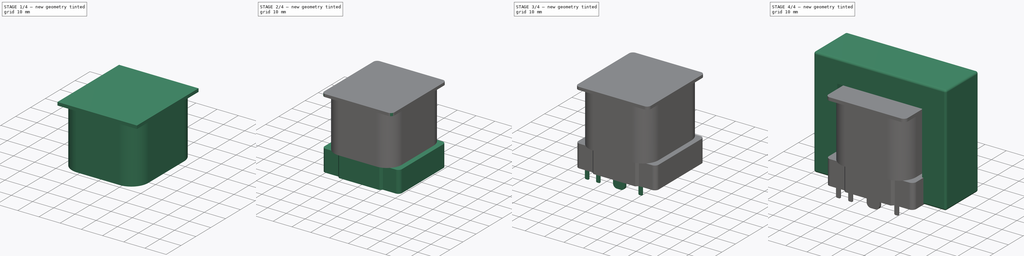
[diagram: build sequence overview — one tinted view per stage of 4, left to right]
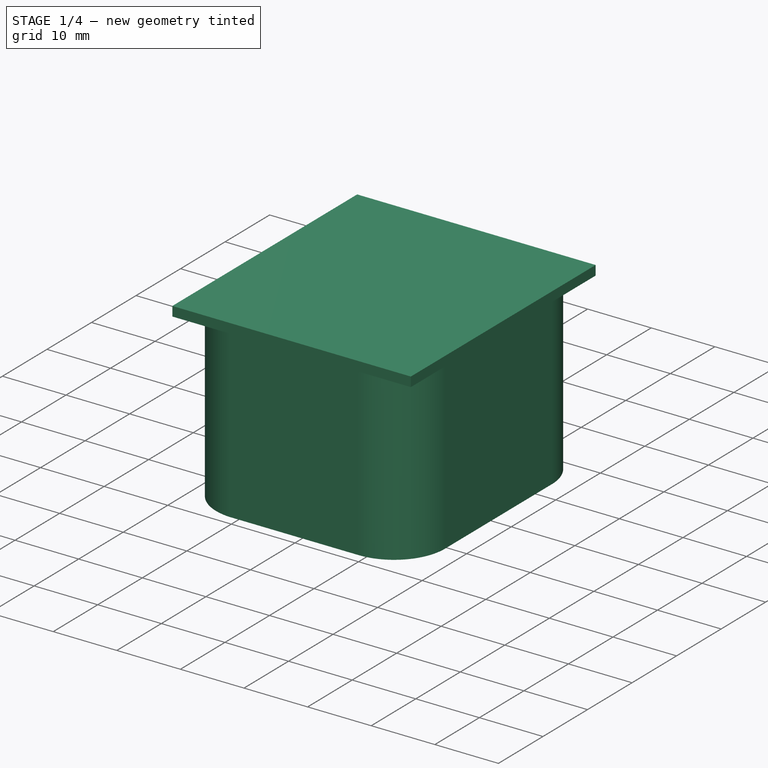
[diagram: stage 1 of 4 — iso view after this stage's code; geometry added in this stage tinted green]
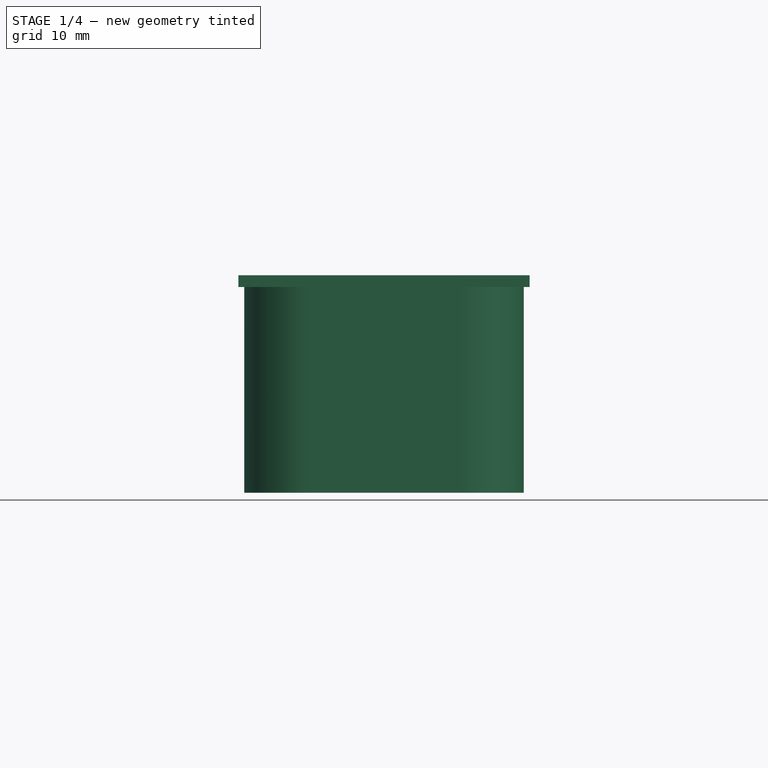
[diagram: stage 1 of 4 — front view after this stage's code; geometry added in this stage tinted green]
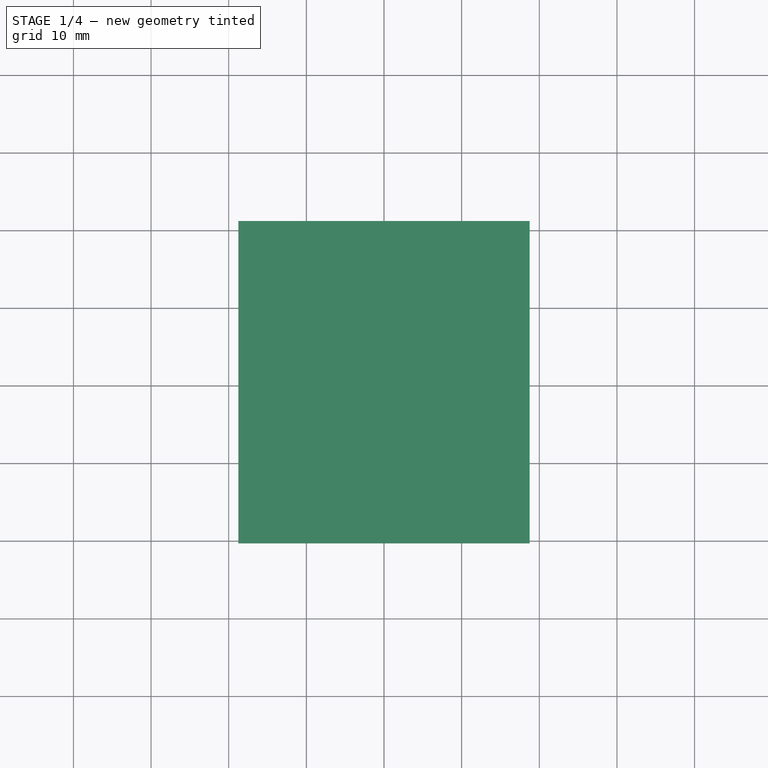
[diagram: stage 1 of 4 — top view after this stage's code; geometry added in this stage tinted green]
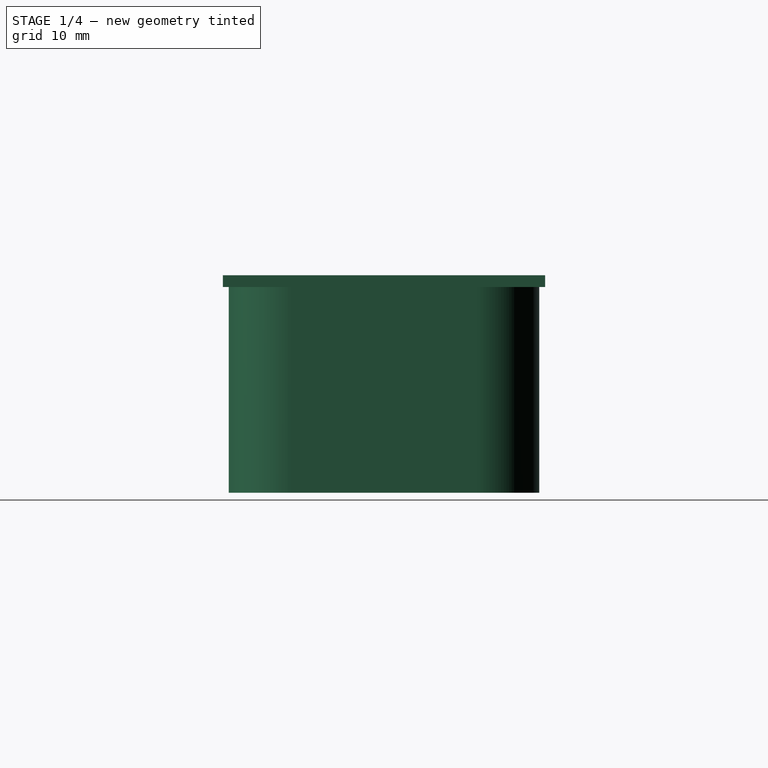
[diagram: stage 1 of 4 — right view after this stage's code; geometry added in this stage tinted green]
FCSTD DOCUMENT  (FreeCAD 0.19R)
Label: Output_transformer
License: All rights reserved
LicenseURL: http://en.wikipedia.org/wiki/All_rights_reserved
objects: PartDesign::Fillet×7, Sketcher::SketchObject×6, PartDesign::Pad×5, PartDesign::Body×2
note: 32 computed .brp shape members not serialized (recipe doc carries the construction recipe); baked Part::Feature solids carry a one-line shape summary decoded from their .brp

FEATURE [Sketcher::SketchObject] Sketch
  FullyConstrained = true
  MapMode = 5
  Support = -> [XY_Plane]
  sketch-geometry (12):
    g0: LineSegment StartX=-20.625 StartY=17.75 StartZ=0 EndX=-20.625 EndY=-17.75 EndZ=0
    g1: LineSegment StartX=-20.625 StartY=-17.75 StartZ=0 EndX=-11.875 EndY=-17.75 EndZ=0
    g2: LineSegment StartX=-11.875 StartY=-17.75 StartZ=0 EndX=-10.75 EndY=-18.875 EndZ=0
    g3: LineSegment StartX=-10.75 StartY=-18.875 StartZ=0 EndX=10.75 EndY=-18.875 EndZ=0
    g4: LineSegment StartX=10.75 StartY=-18.875 StartZ=0 EndX=11.875 EndY=-17.75 EndZ=0
    g5: LineSegment StartX=11.875 StartY=-17.75 StartZ=0 EndX=20.625 EndY=-17.75 EndZ=0
    g6: LineSegment StartX=20.625 StartY=-17.75 StartZ=0 EndX=20.625 EndY=17.75 EndZ=0
    g7: LineSegment StartX=20.625 StartY=17.75 StartZ=0 EndX=11.875 EndY=17.75 EndZ=0
    g8: LineSegment StartX=11.875 StartY=17.75 StartZ=0 EndX=10.75 EndY=18.875 EndZ=0
    g9: LineSegment StartX=10.75 StartY=18.875 StartZ=0 EndX=-10.75 EndY=18.875 EndZ=0
    g10: LineSegment StartX=-10.75 StartY=18.875 StartZ=0 EndX=-11.875 EndY=17.75 EndZ=0
    g11: LineSegment StartX=-11.875 StartY=17.75 StartZ=0 EndX=-20.625 EndY=17.75 EndZ=0
  constraints (30):
    c: Coincident(g0,g1)
    c: Coincident(g1,g2)
    c: Coincident(g2,g3)
    c: Coincident(g3,g4)
    c: Coincident(g4,g5)
    c: Coincident(g5,g6)
    c: Coincident(g6,g7)
    c: Coincident(g7,g8)
    c: Coincident(g8,g9)
    c: Coincident(g9,g10)
    c: Coincident(g10,g11)
    c: Coincident(g11,g0)
    c: Symmetric(g0,g0,g-1)
    c: Symmetric(g5,g6,g-1)
    c: Symmetric(g9,g8,g-2)
    c: Symmetric(g2,g3,g-2)
    c: Horizontal(g7)
    c: Horizontal(g5)
    c: Horizontal(g11)
    c: Horizontal(g1)
    c: DistanceX(g0,g5) = 41.25
    c: Symmetric(g0,g5,g-2)
    c: Equal(g1,g11)
    c: Equal(g11,g7)
    c: Equal(g7,g5)
    c: DistanceY(g0,g0) = 35.5
    c: Symmetric(g9,g2,g-1)
    c: DistanceY(g2,g9) = 37.75
    c: Angle(g4,g3) = 2.35619
    c: DistanceX(g3,g3) = 21.5
FEATURE [Sketcher::SketchObject] Sketch001
  FullyConstrained = true
  MapMode = 5
  Support = -> [XY_Plane]
  sketch-geometry (4):
    g0: LineSegment StartX=-18 StartY=20 StartZ=0 EndX=18 EndY=20 EndZ=0
    g1: LineSegment StartX=18 StartY=20 StartZ=0 EndX=18 EndY=-20 EndZ=0
    g2: LineSegment StartX=18 StartY=-20 StartZ=0 EndX=-18 EndY=-20 EndZ=0
    g3: LineSegment StartX=-18 StartY=-20 StartZ=0 EndX=-18 EndY=20 EndZ=0
  constraints (10):
    c: Coincident(g0,g1)
    c: Coincident(g1,g2)
    c: Coincident(g2,g3)
    c: Coincident(g3,g0)
    c: Horizontal(g0)
    c: Vertical(g3)
    c: Symmetric(g1,g0,g-1)
    c: Symmetric(g2,g1,g-2)
    c: DistanceX(g2,g2) = 36
    c: DistanceY(g3,g3) = 40
FEATURE [PartDesign::Pad] Pad001
  Direction = (1,1,1)
  Length = 26.5
  Length2 = 100
  Profile = -> Sketch001
  Type = 0
FEATURE [Sketcher::SketchObject] Sketch002
  FullyConstrained = true
  MapMode = 5
  Placement = pos=(0,0,26.5) rot=(0,0,1;0rad)
  Support = -> [Pad001]
  sketch-geometry (4):
    g0: LineSegment StartX=-18.75 StartY=20.75 StartZ=0 EndX=18.75 EndY=20.75 EndZ=0
    g1: LineSegment StartX=18.75 StartY=20.75 StartZ=0 EndX=18.75 EndY=-20.75 EndZ=0
    g2: LineSegment StartX=18.75 StartY=-20.75 StartZ=0 EndX=-18.75 EndY=-20.75 EndZ=0
    g3: LineSegment StartX=-18.75 StartY=-20.75 StartZ=0 EndX=-18.75 EndY=20.75 EndZ=0
  constraints (10):
    c: Coincident(g0,g1)
    c: Coincident(g1,g2)
    c: Coincident(g2,g3)
    c: Coincident(g3,g0)
    c: Horizontal(g0)
    c: Vertical(g3)
    c: Symmetric(g0,g1,g-1)
    c: Symmetric(g2,g1,g-2)
    c: DistanceX(g2,g2) = 37.5
    c: DistanceY(g3,g3) = 41.5
FEATURE [PartDesign::Pad] Pad002
  BaseFeature = -> Pad001
  Direction = (1,1,1)
  Length = 1.5
  Length2 = 100
  Profile = -> Sketch002
  Type = 0
FEATURE [PartDesign::Fillet] Fillet
  Base = -> Pad002 [Edge22,Edge20,Edge17,Edge18]
  BaseFeature = -> Pad002
  Radius = 8
  SupportTransform = false
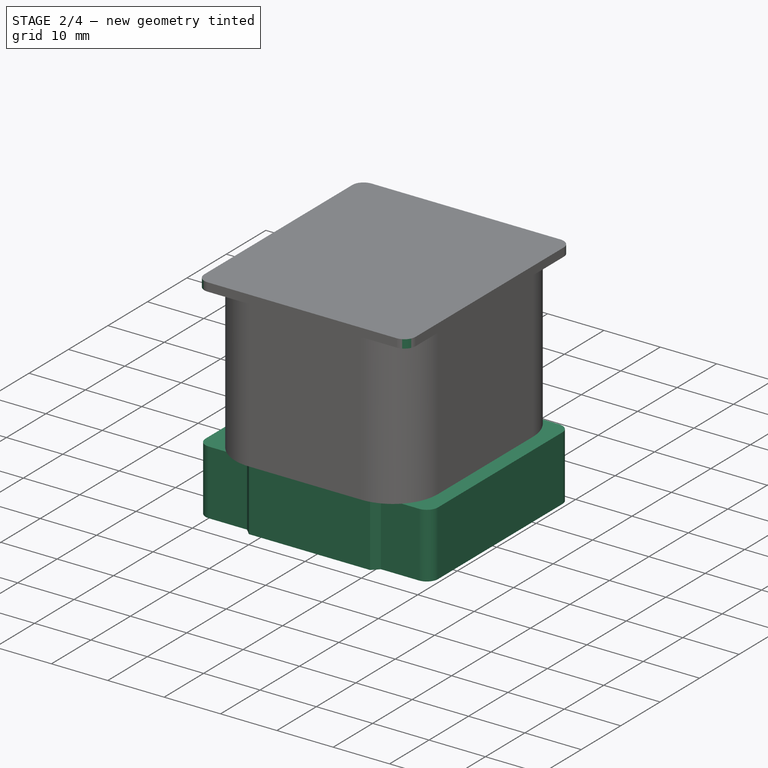
[diagram: stage 2 of 4 — iso view after this stage's code; geometry added in this stage tinted green]
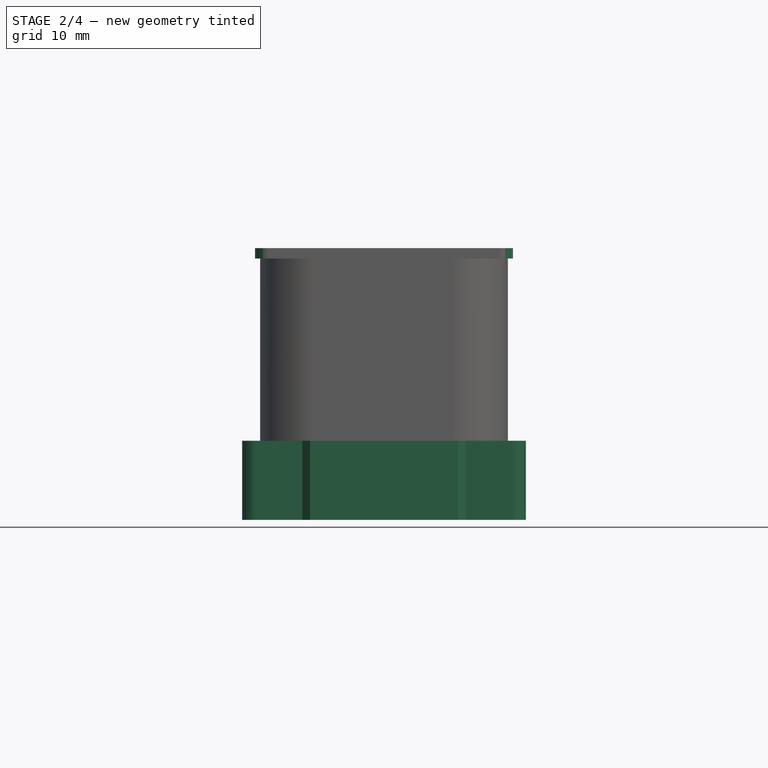
[diagram: stage 2 of 4 — front view after this stage's code; geometry added in this stage tinted green]
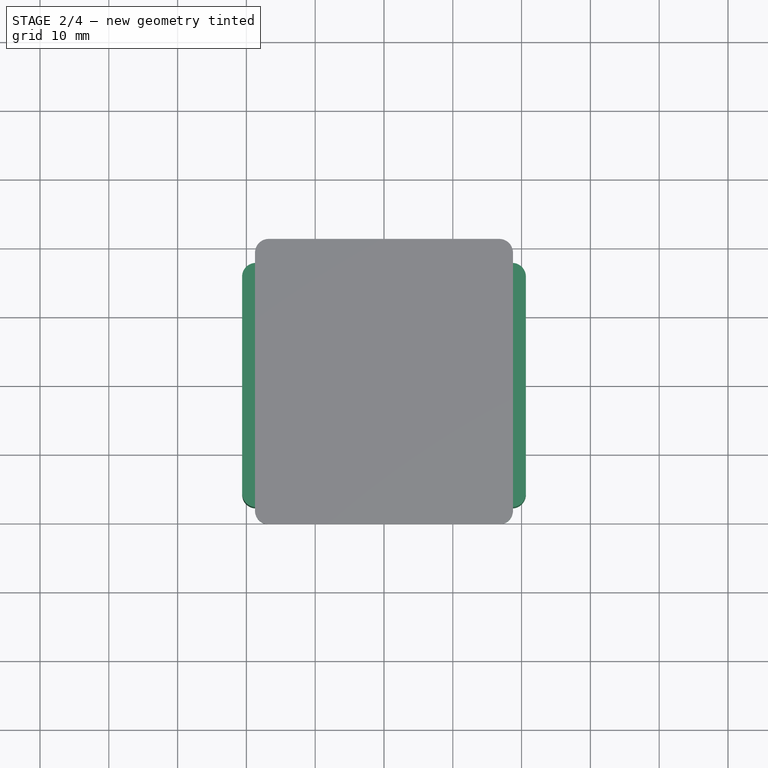
[diagram: stage 2 of 4 — top view after this stage's code; geometry added in this stage tinted green]
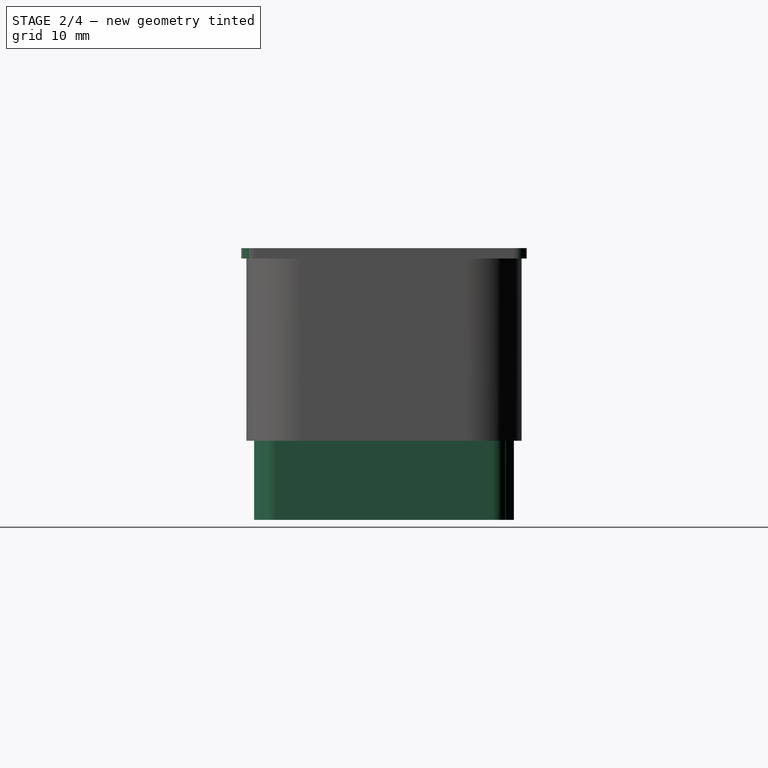
[diagram: stage 2 of 4 — right view after this stage's code; geometry added in this stage tinted green]
FEATURE [PartDesign::Pad] Pad
  BaseFeature = -> Fillet
  Direction = (1,1,1)
  Length = 11.5
  Length2 = 100
  Profile = -> Sketch
  Reversed = true
  Type = 0
FEATURE [PartDesign::Fillet] Fillet001
  Base = -> Pad [Edge33,Edge36,Edge38,Edge34]
  BaseFeature = -> Pad
  Radius = 2
  SupportTransform = false
FEATURE [PartDesign::Fillet] Fillet002
  Base = -> Fillet001 [Edge84,Edge78,Edge80,Edge70]
  BaseFeature = -> Fillet001
  Radius = 2
  SupportTransform = false
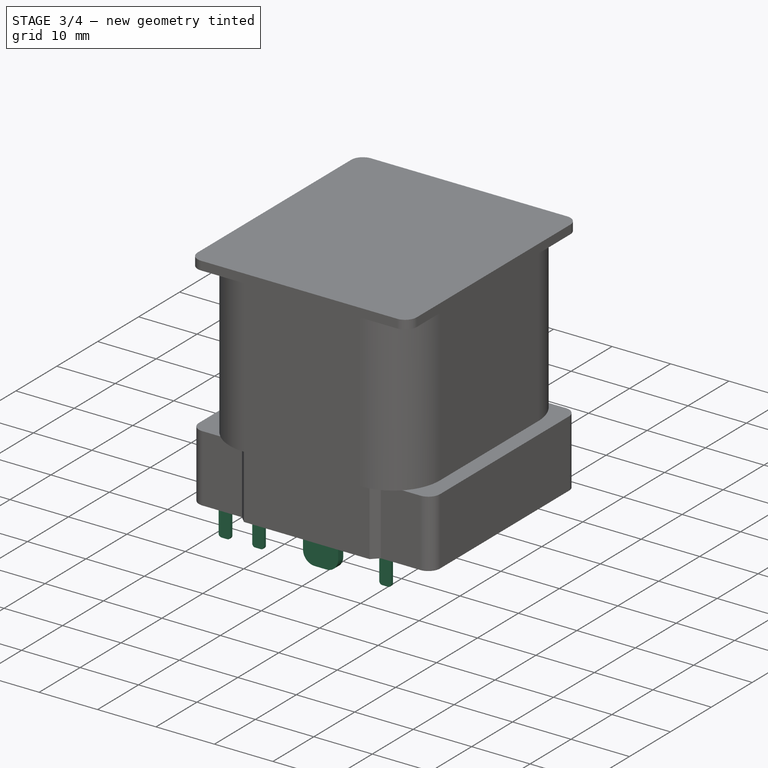
[diagram: stage 3 of 4 — iso view after this stage's code; geometry added in this stage tinted green]
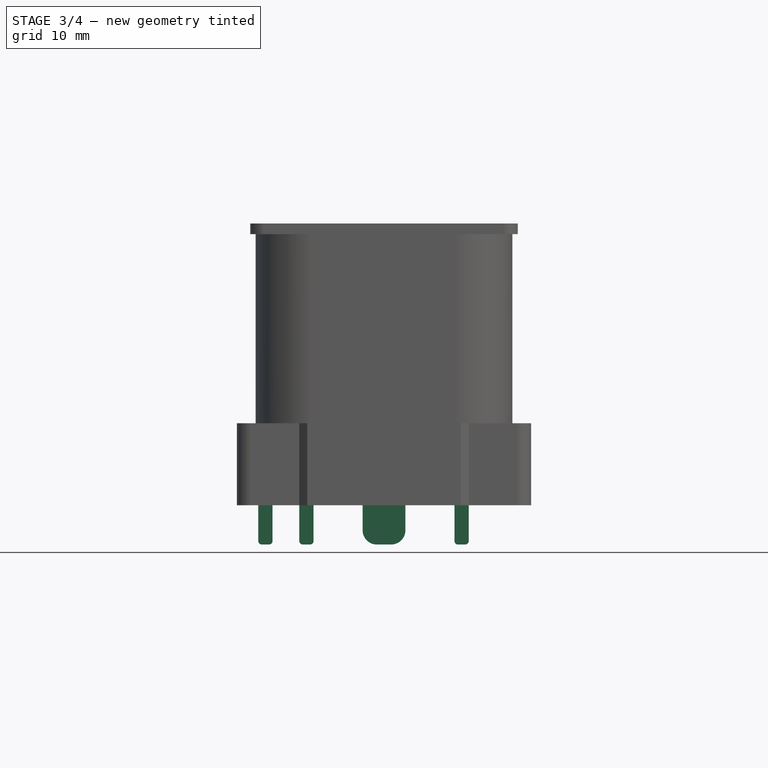
[diagram: stage 3 of 4 — front view after this stage's code; geometry added in this stage tinted green]
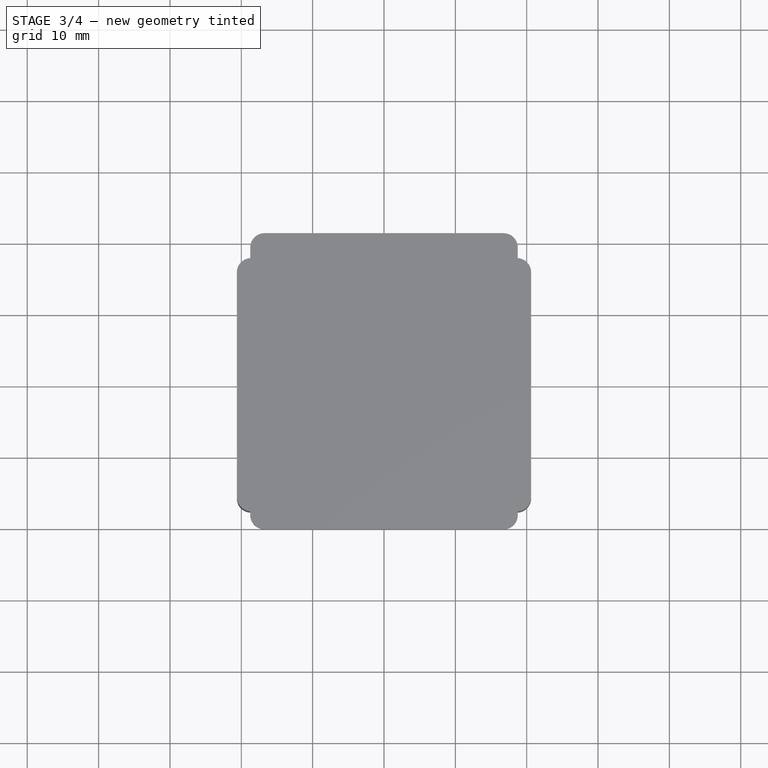
[diagram: stage 3 of 4 — top view after this stage's code; geometry added in this stage tinted green]
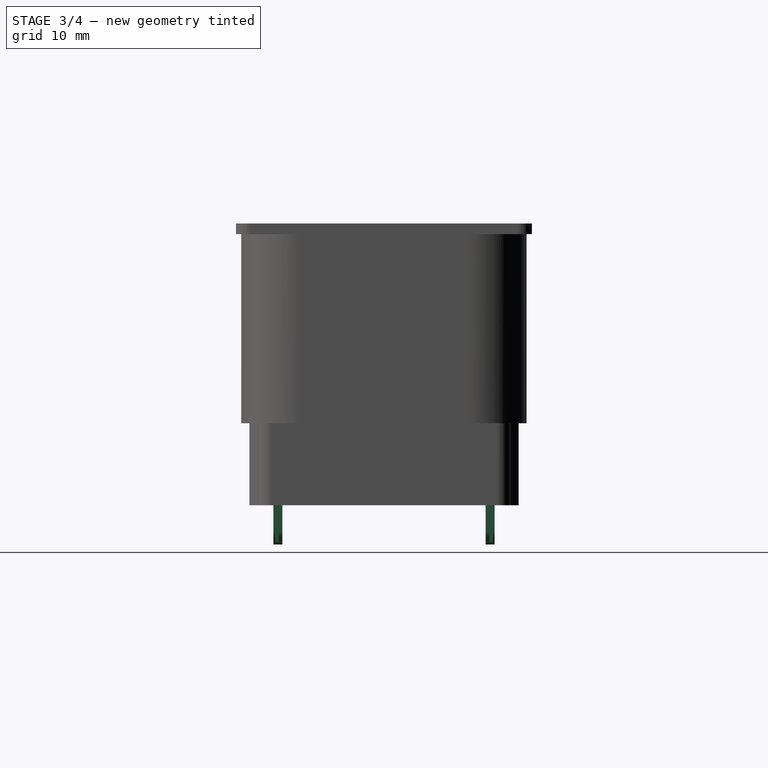
[diagram: stage 3 of 4 — right view after this stage's code; geometry added in this stage tinted green]
FEATURE [Sketcher::SketchObject] Sketch004
  FullyConstrained = true
  MapMode = 5
  Placement = pos=(0,-7.6e-15,-11.5) rot=(1,0,0;3.14159rad)
  Support = -> [Fillet004]
FEATURE [PartDesign::Body] Body001
  Group = -> [Sketch003,Pad003,Fillet003,Fillet004,Sketch004]
  Origin = -> Origin001
  Tip = -> Fillet004
FEATURE [Sketcher::SketchObject] Sketch005
  FullyConstrained = true
  MapMode = 5
  Placement = pos=(0,0,-11.5) rot=(1,0,0;3.14159rad)
  Support = -> [Fillet002]
  sketch-geometry (28):
    g0: LineSegment StartX=-15.625 StartY=14.75 StartZ=0 EndX=-17.625 EndY=14.75 EndZ=0
    g1: LineSegment StartX=-17.625 StartY=14.75 StartZ=0 EndX=-17.625 EndY=15.25 EndZ=0
    g2: LineSegment StartX=-17.625 StartY=15.25 StartZ=0 EndX=-15.625 EndY=15.25 EndZ=0
    g3: LineSegment StartX=-15.625 StartY=15.25 StartZ=0 EndX=-15.625 EndY=14.75 EndZ=0
    g4: LineSegment StartX=-11.875 StartY=14.75 StartZ=0 EndX=-9.875 EndY=14.75 EndZ=0
    g5: LineSegment StartX=-9.875 StartY=14.75 StartZ=0 EndX=-9.875 EndY=15.25 EndZ=0
    g6: LineSegment StartX=-9.875 StartY=15.25 StartZ=0 EndX=-11.875 EndY=15.25 EndZ=0
    g7: LineSegment StartX=-11.875 StartY=15.25 StartZ=0 EndX=-11.875 EndY=14.75 EndZ=0
    g8: LineSegment StartX=-3 StartY=15.5 StartZ=0 EndX=3 EndY=15.5 EndZ=0
    g9: LineSegment StartX=3 StartY=15.5 StartZ=0 EndX=3 EndY=14.25 EndZ=0
    g10: LineSegment StartX=3 StartY=14.25 StartZ=0 EndX=-3 EndY=14.25 EndZ=0
    g11: LineSegment StartX=-3 StartY=14.25 StartZ=0 EndX=-3 EndY=15.5 EndZ=0
    g12: LineSegment StartX=11.875 StartY=15.25 StartZ=0 EndX=9.875 EndY=15.25 EndZ=0
    g13: LineSegment StartX=9.875 StartY=15.25 StartZ=0 EndX=9.875 EndY=14.75 EndZ=0
    g14: LineSegment StartX=9.875 StartY=14.75 StartZ=0 EndX=11.875 EndY=14.75 EndZ=0
    g15: LineSegment StartX=11.875 StartY=14.75 StartZ=0 EndX=11.875 EndY=15.25 EndZ=0
    g16: LineSegment StartX=-17.625 StartY=-14.75 StartZ=0 EndX=-15.625 EndY=-14.75 EndZ=0
    g17: LineSegment StartX=-15.625 StartY=-14.75 StartZ=0 EndX=-15.625 EndY=-15.25 EndZ=0
    g18: LineSegment StartX=-15.625 StartY=-15.25 StartZ=0 EndX=-17.625 EndY=-15.25 EndZ=0
    g19: LineSegment StartX=-17.625 StartY=-15.25 StartZ=0 EndX=-17.625 EndY=-14.75 EndZ=0
    g20: LineSegment StartX=9.875 StartY=-14.75 StartZ=0 EndX=11.875 EndY=-14.75 EndZ=0
    g21: LineSegment StartX=11.875 StartY=-14.75 StartZ=0 EndX=11.875 EndY=-15.25 EndZ=0
    g22: LineSegment StartX=11.875 StartY=-15.25 StartZ=0 EndX=9.875 EndY=-15.25 EndZ=0
    g23: LineSegment StartX=9.875 StartY=-15.25 StartZ=0 EndX=9.875 EndY=-14.75 EndZ=0
    g24: LineSegment StartX=-3 StartY=-14.25 StartZ=0 EndX=3 EndY=-14.25 EndZ=0
    g25: LineSegment StartX=3 StartY=-14.25 StartZ=0 EndX=3 EndY=-15.5 EndZ=0
    g26: LineSegment StartX=3 StartY=-15.5 StartZ=0 EndX=-3 EndY=-15.5 EndZ=0
    g27: LineSegment StartX=-3 StartY=-15.5 StartZ=0 EndX=-3 EndY=-14.25 EndZ=0
  constraints (78):
    c: Coincident(g0,g1)
    c: Coincident(g1,g2)
    c: Coincident(g2,g3)
    c: Coincident(g3,g0)
    c: Horizontal(g0)
    c: Horizontal(g2)
    c: Vertical(g1)
    c: Vertical(g3)
    c: Coincident(g4,g5)
    c: Coincident(g5,g6)
    c: Coincident(g6,g7)
    c: Coincident(g7,g4)
    c: Horizontal(g4)
    c: Horizontal(g6)
    c: Vertical(g5)
    c: Vertical(g7)
    c: Coincident(g8,g9)
    c: Coincident(g9,g10)
    c: Coincident(g10,g11)
    c: Coincident(g11,g8)
    c: Horizontal(g8)
    c: Vertical(g9)
    c: Vertical(g11)
    c: Coincident(g12,g13)
    c: Coincident(g13,g14)
    c: Coincident(g14,g15)
    c: Coincident(g15,g12)
    c: Horizontal(g12)
    c: Horizontal(g14)
    c: Vertical(g13)
    c: Vertical(g15)
    c: Coincident(g16,g17)
    c: Coincident(g17,g18)
    c: Coincident(g18,g19)
    c: Coincident(g19,g16)
    c: Horizontal(g16)
    c: Horizontal(g18)
    c: Vertical(g17)
    c: Vertical(g19)
    c: Coincident(g20,g21)
    c: Coincident(g21,g22)
    c: Coincident(g22,g23)
    c: Coincident(g23,g20)
    c: Horizontal(g20)
    c: Horizontal(g22)
    c: Vertical(g21)
    c: Vertical(g23)
    c: Equal(g19,g3)
    c: Equal(g3,g7)
    c: Equal(g7,g23)
    c: Equal(g23,g15)
    c: Equal(g12,g4)
    c: Equal(g4,g0)
    c: Equal(g0,g16)
    c: Equal(g16,g20)
    c: Coincident(g24,g25)
    c: Coincident(g25,g26)
    c: Coincident(g26,g27)
    c: Coincident(g27,g24)
    c: Horizontal(g24)
    c: Vertical(g25)
    c: Vertical(g27)
    c: Equal(g27,g11)
    c: Symmetric(g26,g25,g-2)
    c: Symmetric(g10,g9,g-2)
    c: Symmetric(g10,g24,g-1)
    c: DistanceY(g24,g10) = 28.5
    c: DistanceY(g11,g11) = 1.25
    c: DistanceX(g26,g26) = 6
    c: Horizontal(g1,g5)
    c: DistanceX(g22,g22) = 2
    c: DistanceY(g21,g21) = 0.5
    c: DistanceY(g21,g12) = 30.5
    c: DistanceX(g1,g4) = 7.75
    c: Symmetric(g0,g16,g-1)
    c: Symmetric(g13,g20,g-1)
    c: DistanceX(g6,g12) = 23.75
    c: Symmetric(g4,g13,g-2)
FEATURE [PartDesign::Pad] Pad004
  BaseFeature = -> Fillet002
  Direction = (1,1,1)
  Length = 5.5
  Length2 = 100
  Profile = -> Sketch005
  Type = 0
FEATURE [PartDesign::Fillet] Fillet005
  Base = -> Pad004 [Edge134,Edge137,Edge158,Edge161]
  BaseFeature = -> Pad004
  Radius = 2
  SupportTransform = false
FEATURE [PartDesign::Fillet] Fillet006
  Base = -> Fillet005 [Edge143,Edge146,Edge123,Edge126,Edge109,Edge105,Edge102,Edge99,Edge113,Edge117]
  BaseFeature = -> Fillet005
  Radius = 0.5
  SupportTransform = false
FEATURE [PartDesign::Body] Body
  Group = -> [Sketch,Sketch001,Pad001,Sketch002,Pad002,Fillet,Pad,Fillet001,Fillet002,Sketch005,Pad004,Fillet005,Fillet006]
  Origin = -> Origin
  Tip = -> Fillet006
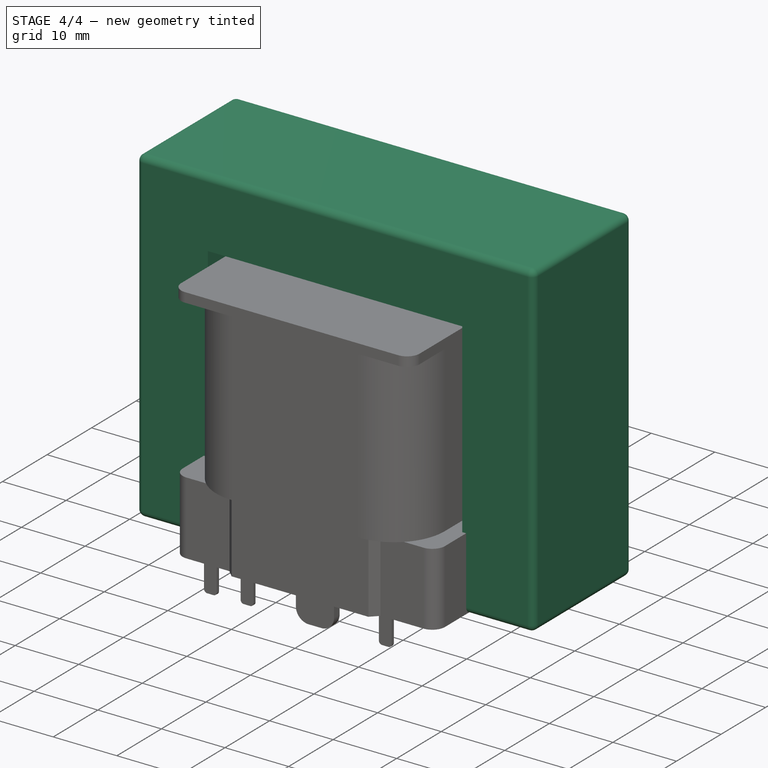
[diagram: stage 4 of 4 — iso view after this stage's code; geometry added in this stage tinted green]
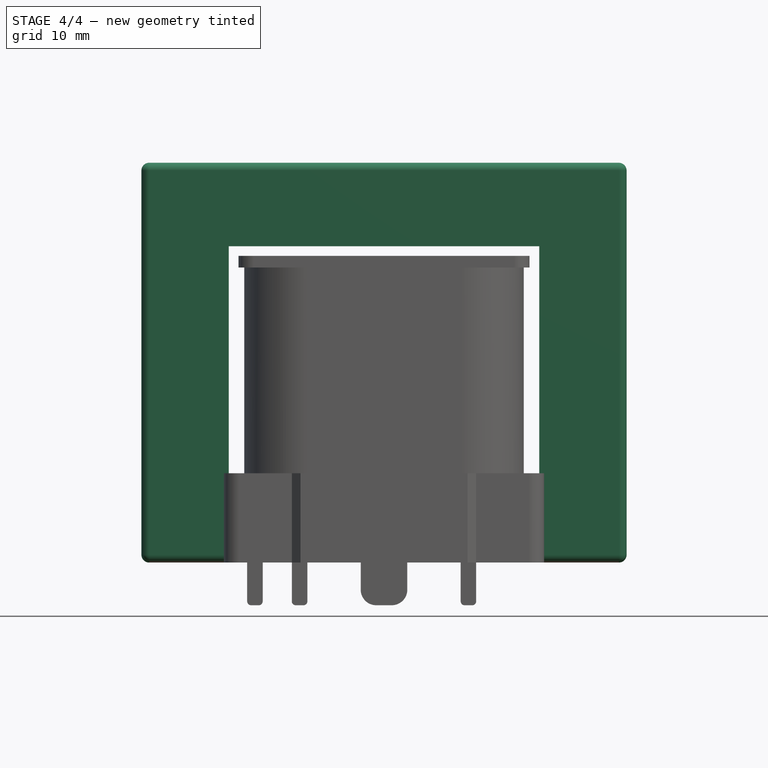
[diagram: stage 4 of 4 — front view after this stage's code; geometry added in this stage tinted green]
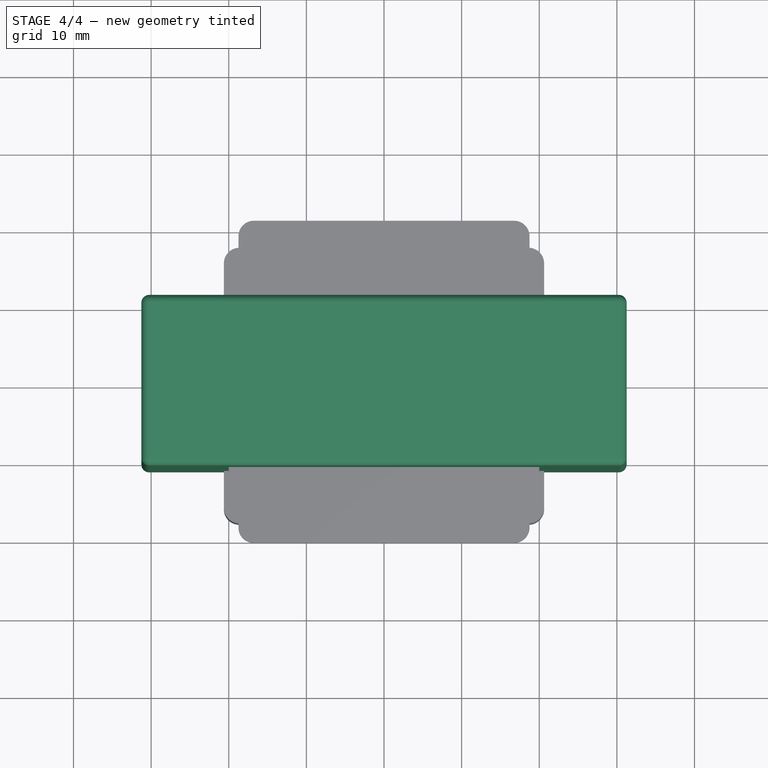
[diagram: stage 4 of 4 — top view after this stage's code; geometry added in this stage tinted green]
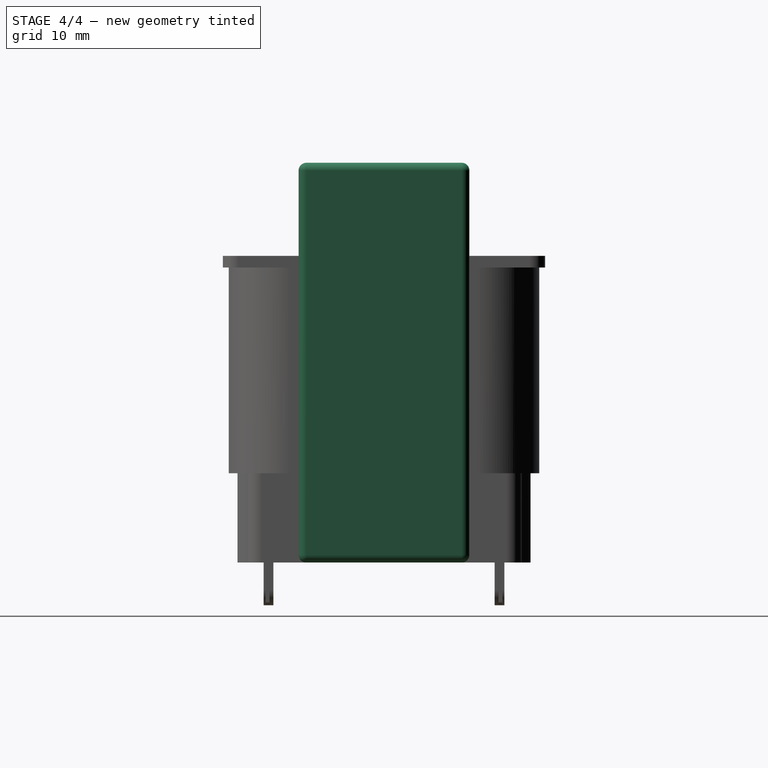
[diagram: stage 4 of 4 — right view after this stage's code; geometry added in this stage tinted green]
FEATURE [Sketcher::SketchObject] Sketch003
  FullyConstrained = true
  MapMode = 5
  Placement = pos=(0,0,0) rot=(1,0,0;1.5708rad)
  Support = -> [XZ_Plane001]
  sketch-geometry (8):
    g0: LineSegment StartX=-31.25 StartY=40 StartZ=0 EndX=31.25 EndY=40 EndZ=0
    g1: LineSegment StartX=31.25 StartY=40 StartZ=0 EndX=31.25 EndY=-11.5 EndZ=0
    g2: LineSegment StartX=31.25 StartY=-11.5 StartZ=0 EndX=-31.25 EndY=-11.5 EndZ=0
    g3: LineSegment StartX=-31.25 StartY=-11.5 StartZ=0 EndX=-31.25 EndY=40 EndZ=0
    g4: LineSegment StartX=-20 StartY=29.25 StartZ=0 EndX=20 EndY=29.25 EndZ=0
    g5: LineSegment StartX=20 StartY=29.25 StartZ=0 EndX=20 EndY=-0.75 EndZ=0
    g6: LineSegment StartX=20 StartY=-0.75 StartZ=0 EndX=-20 EndY=-0.75 EndZ=0
    g7: LineSegment StartX=-20 StartY=-0.75 StartZ=0 EndX=-20 EndY=29.25 EndZ=0
  constraints (22):
    c: Coincident(g0,g1)
    c: Coincident(g1,g2)
    c: Coincident(g2,g3)
    c: Coincident(g3,g0)
    c: Horizontal(g0)
    c: Vertical(g1)
    c: Vertical(g3)
    c: Symmetric(g2,g1,g-2)
    c: DistanceX(g2,g2) = 62.5
    c: DistanceY(g3,g3) = 51.5
    c: DistanceY(g1,g-1) = 11.5
    c: Coincident(g4,g5)
    c: Coincident(g5,g6)
    c: Coincident(g6,g7)
    c: Coincident(g7,g4)
    c: Horizontal(g4)
    c: Vertical(g5)
    c: Vertical(g7)
    c: Symmetric(g6,g5,g-2)
    c: DistanceX(g4,g4) = 40
    c: DistanceY(g5,g5) = 30
    c: DistanceY(g2,g6) = 10.75
FEATURE [PartDesign::Pad] Pad003
  Direction = (1,1,1)
  Length = 11
  Length2 = 11
  Placement = pos=(0,0,0) rot=(1,0,0;1.5708rad)
  Profile = -> Sketch003
  Type = 4
FEATURE [PartDesign::Fillet] Fillet003
  Base = -> Pad003 [Edge5,Edge2,Edge1,Edge8]
  BaseFeature = -> Pad003
  Placement = pos=(0,0,0) rot=(1,0,0;1.5708rad)
  Radius = 1
  SupportTransform = false
FEATURE [PartDesign::Fillet] Fillet004
  Base = -> Fillet003 [Edge7,Edge20]
  BaseFeature = -> Fillet003
  Placement = pos=(0,0,0) rot=(1,0,0;1.5708rad)
  Radius = 1
  SupportTransform = false
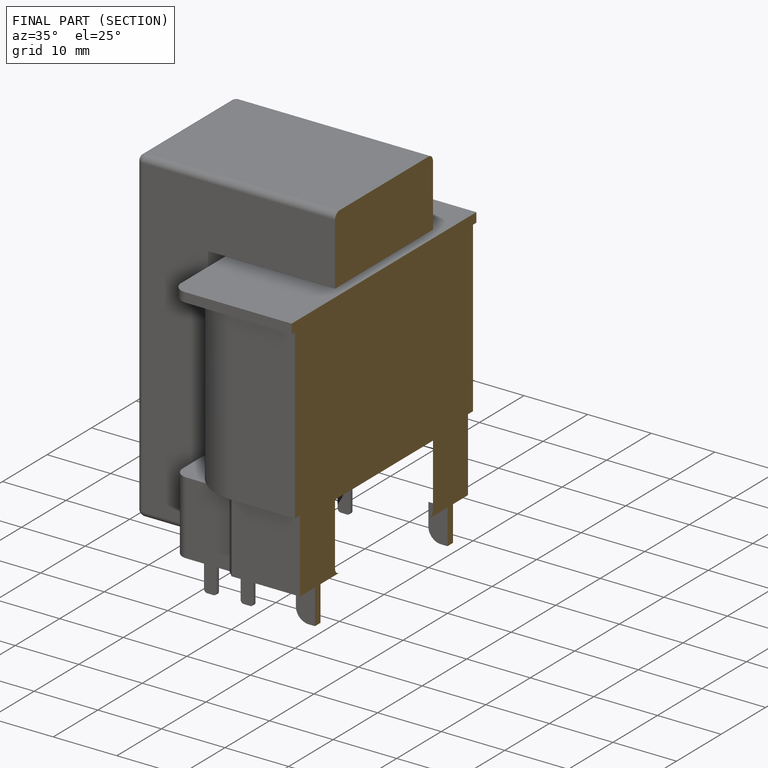
[diagram: finished part — half-section view (interior)]
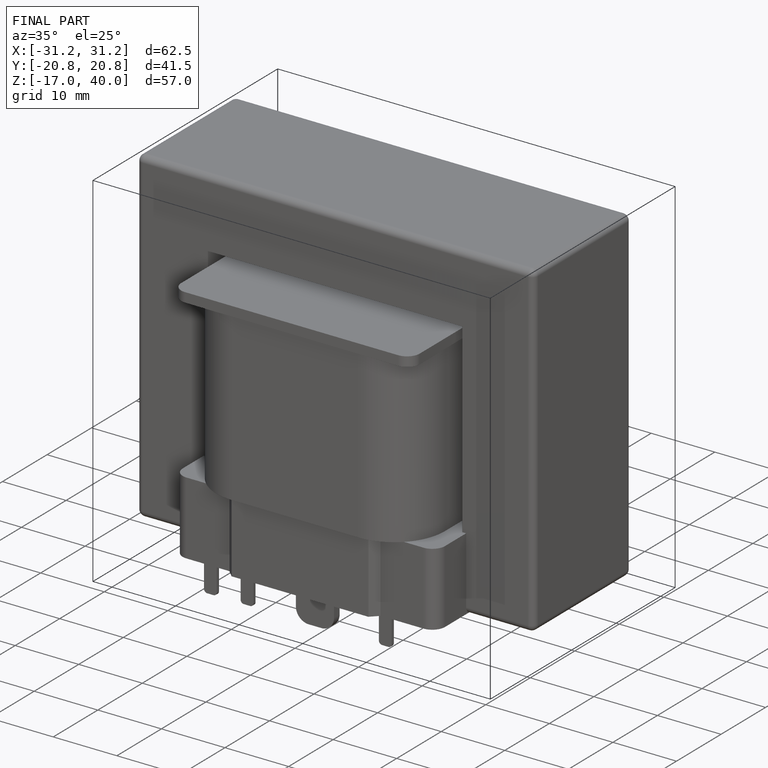
[diagram: finished part — iso view with bounding-box wireframe]
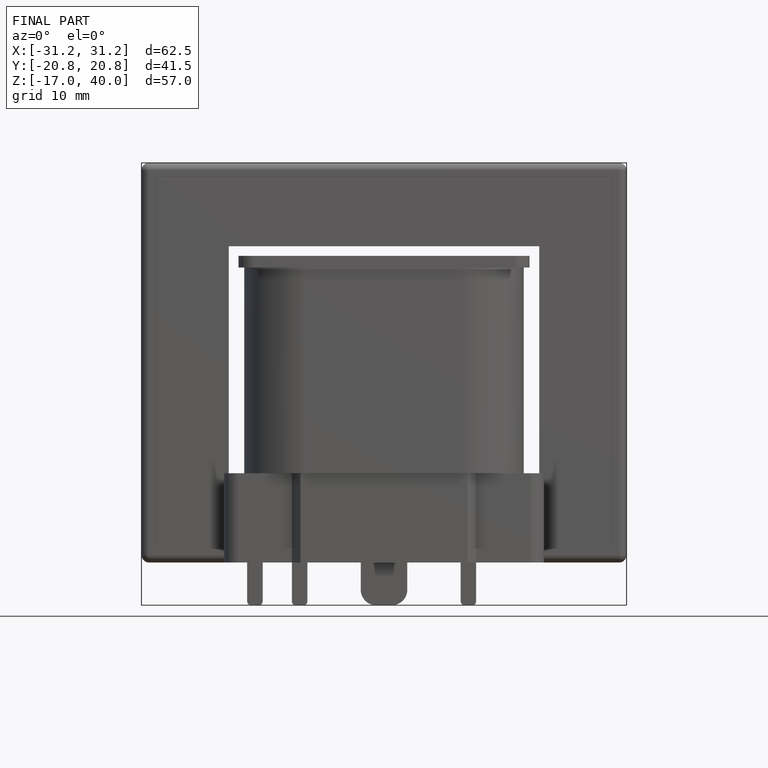
[diagram: finished part — front view with bounding-box wireframe]
